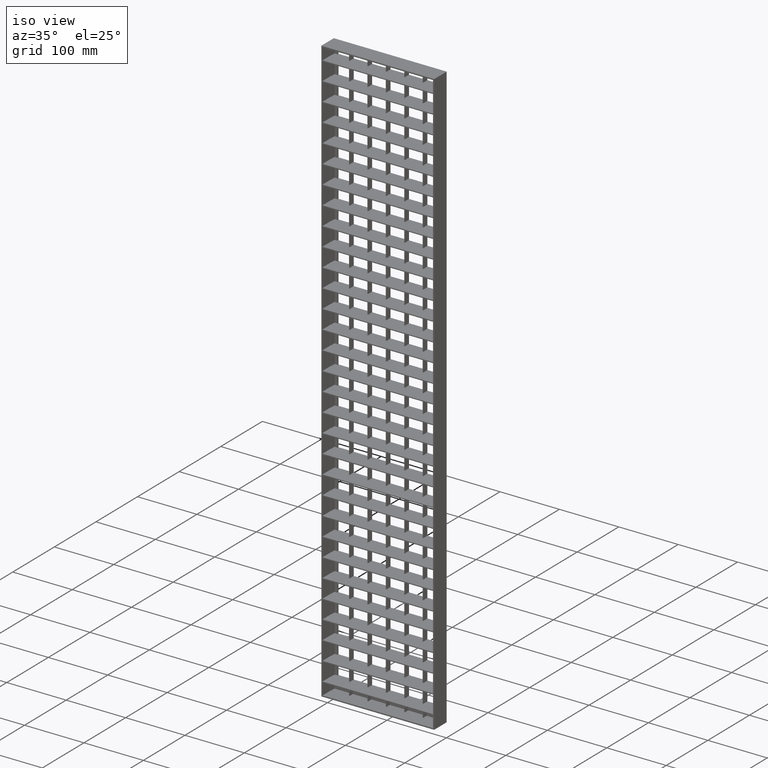
[diagram: clean part render]
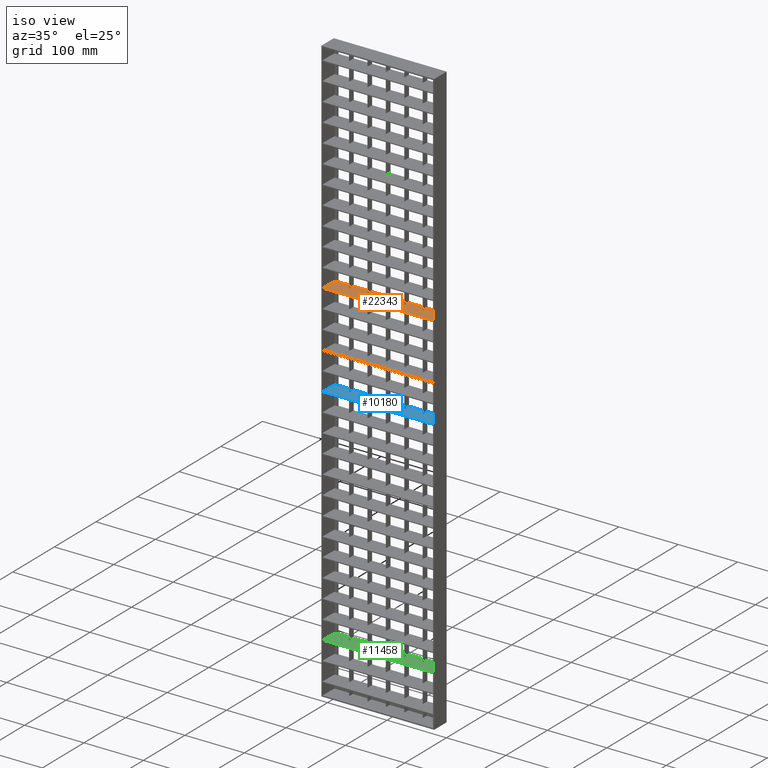
[diagram: same view with three faces highlighted in distinct colors, each labeled with its STEP entity id]
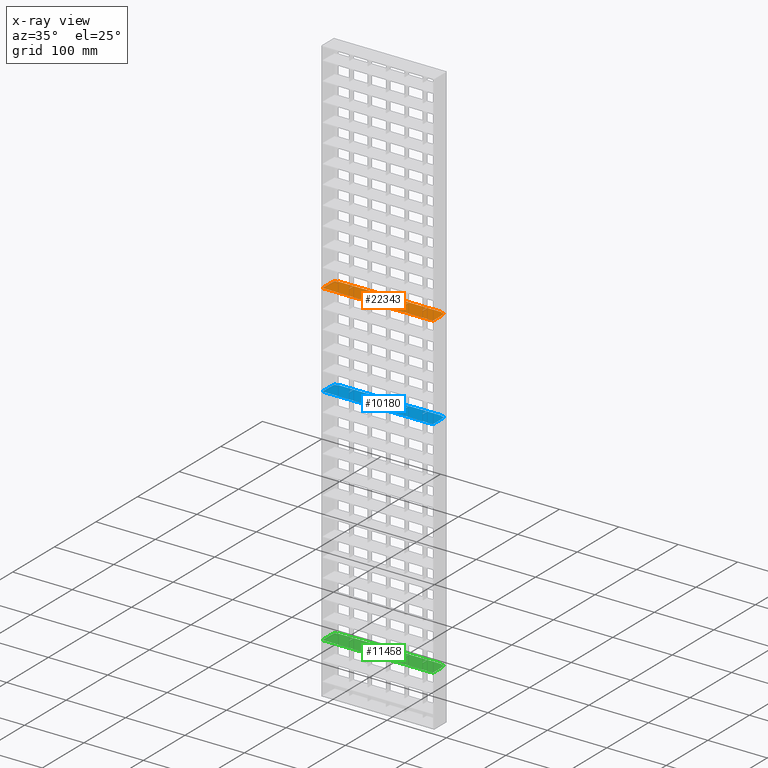
[diagram: x-ray of the same camera — body ghosted, the three highlighted faces saturated]
A machine part, iso view with three faces highlighted in distinct colors.
The next image is the same camera in x-ray (body ghosted, the three faces saturated) — at least one of them is partly hidden behind the body in this view.
Their STEP definitions:

[orange] entity #22343 — the highlighted planar face has unit normal (0, 0, 1).
#105 = CARTESIAN_POINT ( 'NONE',  ( 32.49999999999997200, 5.000000000000000900, -368.2500000000000000 ) ) ;
#331 = CARTESIAN_POINT ( 'NONE',  ( 188.0000000000000300, -15.00000000000000700, -368.2500000000000000 ) ) ;
#342 = DIRECTION ( 'NONE',  ( -1.000000000000000000, 0.0000000000000000000, 0.0000000000000000000 ) ) ;
#415 = VECTOR ( 'NONE', #27162, 1000.000000000000000 ) ;
#445 = VECTOR ( 'NONE', #29638, 1000.000000000000000 ) ;
#1044 = CARTESIAN_POINT ( 'NONE',  ( 218.0374765917511900, 15.00000000000005900, -368.2500000000000000 ) ) ;
#1178 = EDGE_CURVE ( 'NONE', #30626, #23594, #15263, .T. ) ;
#1269 = ORIENTED_EDGE ( 'NONE', *, *, #29873, .T. ) ;
#1390 = CARTESIAN_POINT ( 'NONE',  ( 125.5000000000000600, -14.99999999999994000, -368.2500000000000000 ) ) ;
#1396 = EDGE_CURVE ( 'NONE', #33970, #20019, #18161, .T. ) ;
#1460 = LINE ( 'NONE', #13588, #17010 ) ;
#1532 = VERTEX_POINT ( 'NONE', #21251 ) ;
#1590 = DIRECTION ( 'NONE',  ( 1.000000000000000000, 0.0000000000000000000, -0.0000000000000000000 ) ) ;
#1907 = CARTESIAN_POINT ( 'NONE',  ( 33.49999999999997200, 15.00000000000000200, -368.2500000000000000 ) ) ;
#2244 = VERTEX_POINT ( 'NONE', #4692 ) ;
#2394 = VERTEX_POINT ( 'NONE', #26010 ) ;
#2450 = EDGE_CURVE ( 'NONE', #20481, #14210, #15562, .T. ) ;
#2618 = LINE ( 'NONE', #1044, #3034 ) ;
#3034 = VECTOR ( 'NONE', #32163, 1000.000000000000000 ) ;
#3248 = CARTESIAN_POINT ( 'NONE',  ( 218.0374765917511900, -14.99999999999994000, -368.2500000000000000 ) ) ;
#3270 = VERTEX_POINT ( 'NONE', #17194 ) ;
#3284 = CARTESIAN_POINT ( 'NONE',  ( 2.000000000000001800, -15.00000000000000700, -368.2500000000000000 ) ) ;
#3386 = EDGE_CURVE ( 'NONE', #15707, #21426, #16374, .T. ) ;
#3471 = CARTESIAN_POINT ( 'NONE',  ( 7.999999999999994700, 15.00000000000000400, -368.2499999999999400 ) ) ;
#3502 = ORIENTED_EDGE ( 'NONE', *, *, #32850, .T. ) ;
#3815 = CARTESIAN_POINT ( 'NONE',  ( 126.5000000000000600, -14.99999999999994000, -368.2500000000000000 ) ) ;
#3824 = VECTOR ( 'NONE', #4764, 1000.000000000000000 ) ;
#3900 = CARTESIAN_POINT ( 'NONE',  ( 218.0374765917511900, -14.99999999999994000, -368.2500000000000000 ) ) ;
#3992 = LINE ( 'NONE', #4289, #5203 ) ;
#4093 = CARTESIAN_POINT ( 'NONE',  ( 218.0374765917511900, 5.000000000000000900, -368.2500000000000000 ) ) ;
#4235 = VERTEX_POINT ( 'NONE', #31101 ) ;
#4289 = CARTESIAN_POINT ( 'NONE',  ( 218.0374765917511900, 5.000000000000000900, -368.2500000000000000 ) ) ;
#4519 = CARTESIAN_POINT ( 'NONE',  ( 2.000000000000004900, 13.00000000000000400, -368.2499999999999400 ) ) ;
#4531 = LINE ( 'NONE', #19192, #10654 ) ;
#4649 = CARTESIAN_POINT ( 'NONE',  ( 63.49999999999997200, 5.000000000000000900, -368.2500000000000000 ) ) ;
#4692 = CARTESIAN_POINT ( 'NONE',  ( 157.5000000000000300, 15.00000000000000200, -368.2500000000001700 ) ) ;
#4698 = LINE ( 'NONE', #29965, #31704 ) ;
#4764 = DIRECTION ( 'NONE',  ( -0.0000000000000000000, -1.000000000000000000, 0.0000000000000000000 ) ) ;
#4789 = VECTOR ( 'NONE', #23201, 1000.000000000000000 ) ;
#5035 = CARTESIAN_POINT ( 'NONE',  ( 187.5000000000000600, 13.00000000000000400, -368.2499999999999400 ) ) ;
#5189 = CARTESIAN_POINT ( 'NONE',  ( 64.49999999999997200, -14.99999999999994000, -368.2500000000000000 ) ) ;
#5203 = VECTOR ( 'NONE', #1590, 1000.000000000000000 ) ;
#5529 = CARTESIAN_POINT ( 'NONE',  ( 218.0374765917511900, 5.000000000000000900, -368.2500000000000000 ) ) ;
#5630 = VECTOR ( 'NONE', #28672, 1000.000000000000000 ) ;
#5657 = CARTESIAN_POINT ( 'NONE',  ( 182.0000000000000300, 13.00000000000000400, -368.2499999999999400 ) ) ;
#5779 = ORIENTED_EDGE ( 'NONE', *, *, #7099, .T. ) ;
#5837 = CARTESIAN_POINT ( 'NONE',  ( 125.5000000000000600, 5.000000000000002700, -368.2500000000001700 ) ) ;
#6027 = VECTOR ( 'NONE', #7888, 1000.000000000000000 ) ;
#6158 = DIRECTION ( 'NONE',  ( -1.000000000000000000, -3.061616997868382600E-016, 0.0000000000000000000 ) ) ;
#6334 = DIRECTION ( 'NONE',  ( 8.673617379884036500E-016, -1.000000000000000000, 0.0000000000000000000 ) ) ;
#6576 = VECTOR ( 'NONE', #8154, 1000.000000000000000 ) ;
#6780 = CARTESIAN_POINT ( 'NONE',  ( 157.5000000000000300, 5.000000000000002700, -368.2500000000001700 ) ) ;
#6838 = DIRECTION ( 'NONE',  ( 1.000000000000000000, 0.0000000000000000000, -0.0000000000000000000 ) ) ;
#6901 = ORIENTED_EDGE ( 'NONE', *, *, #15376, .T. ) ;
#7099 = EDGE_CURVE ( 'NONE', #15375, #25930, #18049, .T. ) ;
#7152 = EDGE_CURVE ( 'NONE', #30668, #9257, #13497, .T. ) ;
#7202 = LINE ( 'NONE', #22736, #33446 ) ;
#7361 = DIRECTION ( 'NONE',  ( -1.000000000000000000, 0.0000000000000000000, 0.0000000000000000000 ) ) ;
#7480 = CARTESIAN_POINT ( 'NONE',  ( 2.000000000000004900, -15.00000000000000000, -368.2499999999999400 ) ) ;
#7504 = LINE ( 'NONE', #10257, #23535 ) ;
#7610 = LINE ( 'NONE', #4519, #28954 ) ;
#7839 = CARTESIAN_POINT ( 'NONE',  ( 94.49999999999997200, -14.99999999999994000, -368.2500000000000000 ) ) ;
#7888 = DIRECTION ( 'NONE',  ( -0.0000000000000000000, 1.000000000000000000, 0.0000000000000000000 ) ) ;
#8088 = CARTESIAN_POINT ( 'NONE',  ( 218.0374765917511900, 5.000000000000000900, -368.2500000000000000 ) ) ;
#8154 = DIRECTION ( 'NONE',  ( 1.000000000000000000, 0.0000000000000000000, -0.0000000000000000000 ) ) ;
#8186 = VECTOR ( 'NONE', #14996, 1000.000000000000000 ) ;
#8497 = DIRECTION ( 'NONE',  ( -1.000000000000000000, -3.061616997868382600E-016, 0.0000000000000000000 ) ) ;
#8777 = CARTESIAN_POINT ( 'NONE',  ( 187.5000000000000600, 5.000000000000002700, -368.2500000000001700 ) ) ;
#8855 = LINE ( 'NONE', #25490, #21994 ) ;
#9047 = EDGE_CURVE ( 'NONE', #20481, #10641, #10936, .T. ) ;
#9257 = VERTEX_POINT ( 'NONE', #16864 ) ;
#9307 = VECTOR ( 'NONE', #11713, 1000.000000000000000 ) ;
#9832 = EDGE_CURVE ( 'NONE', #14603, #12320, #14716, .T. ) ;
#10002 = EDGE_CURVE ( 'NONE', #2244, #15375, #32169, .T. ) ;
#10168 = ORIENTED_EDGE ( 'NONE', *, *, #9832, .T. ) ;
#10202 = CARTESIAN_POINT ( 'NONE',  ( 126.5000000000000600, 15.00000000000000200, -368.2500000000001700 ) ) ;
#10257 = CARTESIAN_POINT ( 'NONE',  ( 218.0374765917511900, 5.000000000000000900, -368.2500000000000000 ) ) ;
#10611 = CARTESIAN_POINT ( 'NONE',  ( 218.0374765917511900, 15.00000000000005900, -368.2500000000000000 ) ) ;
#10628 = EDGE_CURVE ( 'NONE', #16754, #18003, #7504, .T. ) ;
#10641 = VERTEX_POINT ( 'NONE', #105 ) ;
#10654 = VECTOR ( 'NONE', #26853, 1000.000000000000000 ) ;
#10706 = EDGE_CURVE ( 'NONE', #22931, #2244, #2618, .T. ) ;
#10825 = ORIENTED_EDGE ( 'NONE', *, *, #1396, .T. ) ;
#10846 = ORIENTED_EDGE ( 'NONE', *, *, #15872, .F. ) ;
#10936 = LINE ( 'NONE', #33827, #5630 ) ;
#11176 = CARTESIAN_POINT ( 'NONE',  ( 188.0000000000000300, 5.000000000000004400, -368.2500000000000600 ) ) ;
#11473 = ORIENTED_EDGE ( 'NONE', *, *, #7152, .T. ) ;
#11655 = EDGE_CURVE ( 'NONE', #32511, #30668, #20615, .T. ) ;
#11686 = CARTESIAN_POINT ( 'NONE',  ( 181.9999999999999700, 15.00000000000000400, -368.2499999999999400 ) ) ;
#11713 = DIRECTION ( 'NONE',  ( -0.0000000000000000000, 1.000000000000000000, 0.0000000000000000000 ) ) ;
#11723 = VECTOR ( 'NONE', #27308, 1000.000000000000000 ) ;
#11837 = LINE ( 'NONE', #16622, #415 ) ;
#11850 = LINE ( 'NONE', #19537, #27043 ) ;
#12256 = VERTEX_POINT ( 'NONE', #4649 ) ;
#12320 = VERTEX_POINT ( 'NONE', #5657 ) ;
#12433 = DIRECTION ( 'NONE',  ( -0.0000000000000000000, 1.000000000000000000, 0.0000000000000000000 ) ) ;
#12627 = VERTEX_POINT ( 'NONE', #27754 ) ;
#12664 = EDGE_CURVE ( 'NONE', #9257, #3270, #11850, .T. ) ;
#12921 = CARTESIAN_POINT ( 'NONE',  ( 2.499999999999974200, 13.00000000000000400, -368.2499999999999400 ) ) ;
#13124 = LINE ( 'NONE', #5529, #6576 ) ;
#13258 = DIRECTION ( 'NONE',  ( -1.000000000000000000, -3.061616997868382600E-016, 0.0000000000000000000 ) ) ;
#13393 = ORIENTED_EDGE ( 'NONE', *, *, #33007, .T. ) ;
#13497 = LINE ( 'NONE', #1390, #21713 ) ;
#13587 = ORIENTED_EDGE ( 'NONE', *, *, #9047, .F. ) ;
#13588 = CARTESIAN_POINT ( 'NONE',  ( 218.0374765917511900, 15.00000000000005900, -368.2500000000000000 ) ) ;
#13740 = EDGE_CURVE ( 'NONE', #18003, #14603, #25321, .T. ) ;
#13866 = EDGE_CURVE ( 'NONE', #16241, #29797, #3992, .T. ) ;
#14177 = CARTESIAN_POINT ( 'NONE',  ( 64.49999999999997200, 15.00000000000001200, -368.2500000000000000 ) ) ;
#14210 = VERTEX_POINT ( 'NONE', #3471 ) ;
#14242 = DIRECTION ( 'NONE',  ( -0.0000000000000000000, 1.000000000000000000, 0.0000000000000000000 ) ) ;
#14365 = CARTESIAN_POINT ( 'NONE',  ( 218.0374765917511900, 15.00000000000005900, -368.2500000000000000 ) ) ;
#14603 = VERTEX_POINT ( 'NONE', #5035 ) ;
#14638 = VERTEX_POINT ( 'NONE', #12921 ) ;
#14716 = LINE ( 'NONE', #30712, #8186 ) ;
#14745 = ORIENTED_EDGE ( 'NONE', *, *, #2450, .T. ) ;
#14869 = ORIENTED_EDGE ( 'NONE', *, *, #10002, .T. ) ;
#14928 = VECTOR ( 'NONE', #15637, 1000.000000000000000 ) ;
#14996 = DIRECTION ( 'NONE',  ( -1.000000000000000000, 0.0000000000000000000, 0.0000000000000000000 ) ) ;
#15198 = EDGE_LOOP ( 'NONE', ( #32326, #27073, #16518, #10168, #1269, #30987, #14869, #5779, #29835, #32878, #6901, #23401, #11473, #24644, #16704, #20458, #24486, #17330, #23876, #25021, #17707, #30587, #28047, #25943, #13587, #14745, #13393, #3502, #10846, #21398, #10825, #31093 ) ) ;
#15263 = LINE ( 'NONE', #22205, #32080 ) ;
#15375 = VERTEX_POINT ( 'NONE', #6780 ) ;
#15376 = EDGE_CURVE ( 'NONE', #21518, #32511, #21191, .T. ) ;
#15562 = LINE ( 'NONE', #14365, #445 ) ;
#15637 = DIRECTION ( 'NONE',  ( 0.0000000000000000000, -1.000000000000000000, 0.0000000000000000000 ) ) ;
#15707 = VERTEX_POINT ( 'NONE', #17135 ) ;
#15799 = EDGE_CURVE ( 'NONE', #12256, #21765, #8855, .T. ) ;
#15872 = EDGE_CURVE ( 'NONE', #2394, #14638, #7202, .T. ) ;
#15992 = VECTOR ( 'NONE', #29875, 1000.000000000000000 ) ;
#16039 = CARTESIAN_POINT ( 'NONE',  ( 157.5000000000000300, -14.99999999999994000, -368.2500000000000000 ) ) ;
#16181 = CARTESIAN_POINT ( 'NONE',  ( 156.5000000000000300, 5.000000000000002700, -368.2500000000001700 ) ) ;
#16241 = VERTEX_POINT ( 'NONE', #32546 ) ;
#16374 = LINE ( 'NONE', #25440, #22965 ) ;
#16380 = CARTESIAN_POINT ( 'NONE',  ( 2.000000000000004900, 5.000000000000000900, -368.2499999999999400 ) ) ;
#16518 = ORIENTED_EDGE ( 'NONE', *, *, #13740, .T. ) ;
#16622 = CARTESIAN_POINT ( 'NONE',  ( 188.0000000000000300, -14.99999999999994000, -368.2500000000000000 ) ) ;
#16704 = ORIENTED_EDGE ( 'NONE', *, *, #32437, .F. ) ;
#16754 = VERTEX_POINT ( 'NONE', #11176 ) ;
#16791 = VECTOR ( 'NONE', #20023, 1000.000000000000000 ) ;
#16864 = CARTESIAN_POINT ( 'NONE',  ( 125.5000000000000600, 15.00000000000003000, -368.2500000000000000 ) ) ;
#16914 = CARTESIAN_POINT ( 'NONE',  ( 187.5000000000000600, -14.99999999999994000, -368.2500000000000000 ) ) ;
#17010 = VECTOR ( 'NONE', #29087, 1000.000000000000000 ) ;
#17135 = CARTESIAN_POINT ( 'NONE',  ( 33.49999999999997200, 5.000000000000004400, -368.2500000000000000 ) ) ;
#17194 = CARTESIAN_POINT ( 'NONE',  ( 95.49999999999997200, 15.00000000000002000, -368.2500000000000000 ) ) ;
#17330 = ORIENTED_EDGE ( 'NONE', *, *, #1178, .T. ) ;
#17707 = ORIENTED_EDGE ( 'NONE', *, *, #24199, .F. ) ;
#18003 = VERTEX_POINT ( 'NONE', #8777 ) ;
#18049 = LINE ( 'NONE', #30225, #15992 ) ;
#18161 = LINE ( 'NONE', #7480, #3824 ) ;
#18803 = CARTESIAN_POINT ( 'NONE',  ( 126.5000000000000600, 5.000000000000002700, -368.2500000000001700 ) ) ;
#18919 = CARTESIAN_POINT ( 'NONE',  ( 32.49999999999997200, 15.00000000000000200, -368.2500000000001700 ) ) ;
#19192 = CARTESIAN_POINT ( 'NONE',  ( 182.0000000000000300, 12.99999999999991300, -368.2499999999999400 ) ) ;
#19537 = CARTESIAN_POINT ( 'NONE',  ( 218.0374765917511900, 15.00000000000005900, -368.2500000000000000 ) ) ;
#19992 = LINE ( 'NONE', #23437, #31854 ) ;
#20019 = VERTEX_POINT ( 'NONE', #3284 ) ;
#20023 = DIRECTION ( 'NONE',  ( 0.0000000000000000000, -1.000000000000000000, 0.0000000000000000000 ) ) ;
#20458 = ORIENTED_EDGE ( 'NONE', *, *, #13866, .F. ) ;
#20481 = VERTEX_POINT ( 'NONE', #18919 ) ;
#20615 = LINE ( 'NONE', #8088, #22606 ) ;
#21191 = LINE ( 'NONE', #3815, #11723 ) ;
#21251 = CARTESIAN_POINT ( 'NONE',  ( 7.999999999999996400, 13.00000000000000400, -368.2499999999999400 ) ) ;
#21398 = ORIENTED_EDGE ( 'NONE', *, *, #31795, .F. ) ;
#21424 = DIRECTION ( 'NONE',  ( 0.0000000000000000000, -1.000000000000000000, 0.0000000000000000000 ) ) ;
#21426 = VERTEX_POINT ( 'NONE', #1907 ) ;
#21518 = VERTEX_POINT ( 'NONE', #10202 ) ;
#21563 = VECTOR ( 'NONE', #6838, 1000.000000000000000 ) ;
#21713 = VECTOR ( 'NONE', #24968, 1000.000000000000000 ) ;
#21765 = VERTEX_POINT ( 'NONE', #30173 ) ;
#21894 = DIRECTION ( 'NONE',  ( 1.000000000000000000, 0.0000000000000000000, -0.0000000000000000000 ) ) ;
#21994 = VECTOR ( 'NONE', #22851, 1000.000000000000000 ) ;
#22043 = DIRECTION ( 'NONE',  ( -1.000000000000000000, -3.061616997868382600E-016, 0.0000000000000000000 ) ) ;
#22205 = CARTESIAN_POINT ( 'NONE',  ( 218.0374765917511900, 15.00000000000005900, -368.2500000000000000 ) ) ;
#22343 = ADVANCED_FACE ( 'NONE', ( #33710 ), #32880, .T. ) ;
#22426 = LINE ( 'NONE', #5189, #4789 ) ;
#22606 = VECTOR ( 'NONE', #342, 1000.000000000000000 ) ;
#22736 = CARTESIAN_POINT ( 'NONE',  ( 2.499999999999974200, -14.99999999999994000, -368.2500000000000000 ) ) ;
#22851 = DIRECTION ( 'NONE',  ( 1.000000000000000000, 0.0000000000000000000, -0.0000000000000000000 ) ) ;
#22931 = VERTEX_POINT ( 'NONE', #11686 ) ;
#22965 = VECTOR ( 'NONE', #12433, 1000.000000000000000 ) ;
#23201 = DIRECTION ( 'NONE',  ( -0.0000000000000000000, 1.000000000000000000, 0.0000000000000000000 ) ) ;
#23401 = ORIENTED_EDGE ( 'NONE', *, *, #11655, .T. ) ;
#23437 = CARTESIAN_POINT ( 'NONE',  ( 7.999999999999996400, 13.00000000000000400, -368.2499999999999400 ) ) ;
#23535 = VECTOR ( 'NONE', #24290, 1000.000000000000000 ) ;
#23594 = VERTEX_POINT ( 'NONE', #14177 ) ;
#23876 = ORIENTED_EDGE ( 'NONE', *, *, #25794, .F. ) ;
#24199 = EDGE_CURVE ( 'NONE', #12627, #12256, #29107, .T. ) ;
#24290 = DIRECTION ( 'NONE',  ( -1.000000000000000000, 0.0000000000000000000, 0.0000000000000000000 ) ) ;
#24486 = ORIENTED_EDGE ( 'NONE', *, *, #27109, .F. ) ;
#24491 = VECTOR ( 'NONE', #13258, 1000.000000000000000 ) ;
#24644 = ORIENTED_EDGE ( 'NONE', *, *, #12664, .T. ) ;
#24952 = CARTESIAN_POINT ( 'NONE',  ( 63.49999999999997200, -14.99999999999994000, -368.2500000000000000 ) ) ;
#24968 = DIRECTION ( 'NONE',  ( -0.0000000000000000000, 1.000000000000000000, 0.0000000000000000000 ) ) ;
#25021 = ORIENTED_EDGE ( 'NONE', *, *, #15799, .F. ) ;
#25321 = LINE ( 'NONE', #16914, #9307 ) ;
#25364 = LINE ( 'NONE', #3248, #27806 ) ;
#25440 = CARTESIAN_POINT ( 'NONE',  ( 33.49999999999997200, -14.99999999999994000, -368.2500000000000000 ) ) ;
#25490 = CARTESIAN_POINT ( 'NONE',  ( 218.0374765917511900, 5.000000000000000900, -368.2500000000000000 ) ) ;
#25794 = EDGE_CURVE ( 'NONE', #21765, #23594, #22426, .T. ) ;
#25930 = VERTEX_POINT ( 'NONE', #16181 ) ;
#25943 = ORIENTED_EDGE ( 'NONE', *, *, #26902, .F. ) ;
#26010 = CARTESIAN_POINT ( 'NONE',  ( 2.499999999999974200, 5.000000000000004400, -368.2500000000000000 ) ) ;
#26396 = CARTESIAN_POINT ( 'NONE',  ( 95.49999999999997200, 5.000000000000004400, -368.2500000000000000 ) ) ;
#26507 = EDGE_CURVE ( 'NONE', #4235, #21518, #31809, .T. ) ;
#26853 = DIRECTION ( 'NONE',  ( 8.673617379884037400E-016, 1.000000000000000000, -0.0000000000000000000 ) ) ;
#26902 = EDGE_CURVE ( 'NONE', #10641, #15707, #26904, .T. ) ;
#26904 = LINE ( 'NONE', #4093, #21563 ) ;
#27043 = VECTOR ( 'NONE', #22043, 1000.000000000000000 ) ;
#27045 = CARTESIAN_POINT ( 'NONE',  ( 94.49999999999997200, 15.00000000000000200, -368.2500000000001700 ) ) ;
#27073 = ORIENTED_EDGE ( 'NONE', *, *, #10628, .T. ) ;
#27109 = EDGE_CURVE ( 'NONE', #30626, #16241, #31361, .T. ) ;
#27162 = DIRECTION ( 'NONE',  ( 0.0000000000000000000, -1.000000000000000000, 0.0000000000000000000 ) ) ;
#27308 = DIRECTION ( 'NONE',  ( 0.0000000000000000000, -1.000000000000000000, 0.0000000000000000000 ) ) ;
#27534 = EDGE_CURVE ( 'NONE', #12627, #21426, #1460, .T. ) ;
#27754 = CARTESIAN_POINT ( 'NONE',  ( 63.49999999999997200, 15.00000000000000200, -368.2500000000001700 ) ) ;
#27806 = VECTOR ( 'NONE', #8497, 1000.000000000000000 ) ;
#28047 = ORIENTED_EDGE ( 'NONE', *, *, #3386, .F. ) ;
#28420 = EDGE_CURVE ( 'NONE', #25930, #4235, #4698, .T. ) ;
#28672 = DIRECTION ( 'NONE',  ( 0.0000000000000000000, -1.000000000000000000, 0.0000000000000000000 ) ) ;
#28954 = VECTOR ( 'NONE', #7361, 1000.000000000000000 ) ;
#29087 = DIRECTION ( 'NONE',  ( -1.000000000000000000, -3.061616997868382600E-016, 0.0000000000000000000 ) ) ;
#29107 = LINE ( 'NONE', #24952, #16791 ) ;
#29403 = LINE ( 'NONE', #33907, #6027 ) ;
#29598 = AXIS2_PLACEMENT_3D ( 'NONE', #3900, #30139, #21894 ) ;
#29638 = DIRECTION ( 'NONE',  ( -1.000000000000000000, -3.061616997868382600E-016, 0.0000000000000000000 ) ) ;
#29797 = VERTEX_POINT ( 'NONE', #26396 ) ;
#29835 = ORIENTED_EDGE ( 'NONE', *, *, #28420, .T. ) ;
#29873 = EDGE_CURVE ( 'NONE', #12320, #22931, #4531, .T. ) ;
#29875 = DIRECTION ( 'NONE',  ( -1.000000000000000000, 0.0000000000000000000, 0.0000000000000000000 ) ) ;
#29965 = CARTESIAN_POINT ( 'NONE',  ( 156.5000000000000300, -14.99999999999994000, -368.2500000000000000 ) ) ;
#30139 = DIRECTION ( 'NONE',  ( 0.0000000000000000000, 0.0000000000000000000, 1.000000000000000000 ) ) ;
#30173 = CARTESIAN_POINT ( 'NONE',  ( 64.49999999999997200, 5.000000000000004400, -368.2500000000000000 ) ) ;
#30225 = CARTESIAN_POINT ( 'NONE',  ( 218.0374765917511900, 5.000000000000000900, -368.2500000000000000 ) ) ;
#30587 = ORIENTED_EDGE ( 'NONE', *, *, #27534, .T. ) ;
#30626 = VERTEX_POINT ( 'NONE', #27045 ) ;
#30668 = VERTEX_POINT ( 'NONE', #5837 ) ;
#30688 = EDGE_CURVE ( 'NONE', #16754, #31196, #11837, .T. ) ;
#30712 = CARTESIAN_POINT ( 'NONE',  ( 94.99999999999994300, 13.00000000000000400, -368.2500000000000600 ) ) ;
#30987 = ORIENTED_EDGE ( 'NONE', *, *, #10706, .T. ) ;
#31093 = ORIENTED_EDGE ( 'NONE', *, *, #31892, .F. ) ;
#31101 = CARTESIAN_POINT ( 'NONE',  ( 156.5000000000000300, 15.00000000000003900, -368.2500000000000000 ) ) ;
#31196 = VERTEX_POINT ( 'NONE', #331 ) ;
#31345 = VECTOR ( 'NONE', #21424, 1000.000000000000000 ) ;
#31361 = LINE ( 'NONE', #7839, #14928 ) ;
#31704 = VECTOR ( 'NONE', #14242, 1000.000000000000000 ) ;
#31795 = EDGE_CURVE ( 'NONE', #33970, #2394, #13124, .T. ) ;
#31809 = LINE ( 'NONE', #10611, #24491 ) ;
#31854 = VECTOR ( 'NONE', #6334, 1000.000000000000000 ) ;
#31892 = EDGE_CURVE ( 'NONE', #31196, #20019, #25364, .T. ) ;
#32080 = VECTOR ( 'NONE', #6158, 1000.000000000000000 ) ;
#32163 = DIRECTION ( 'NONE',  ( -1.000000000000000000, -3.061616997868382600E-016, 0.0000000000000000000 ) ) ;
#32169 = LINE ( 'NONE', #16039, #31345 ) ;
#32326 = ORIENTED_EDGE ( 'NONE', *, *, #30688, .F. ) ;
#32437 = EDGE_CURVE ( 'NONE', #29797, #3270, #29403, .T. ) ;
#32511 = VERTEX_POINT ( 'NONE', #18803 ) ;
#32546 = CARTESIAN_POINT ( 'NONE',  ( 94.49999999999997200, 5.000000000000000900, -368.2500000000000000 ) ) ;
#32850 = EDGE_CURVE ( 'NONE', #1532, #14638, #7610, .T. ) ;
#32878 = ORIENTED_EDGE ( 'NONE', *, *, #26507, .T. ) ;
#32880 = PLANE ( 'NONE',  #29598 ) ;
#33007 = EDGE_CURVE ( 'NONE', #14210, #1532, #19992, .T. ) ;
#33446 = VECTOR ( 'NONE', #33596, 1000.000000000000000 ) ;
#33596 = DIRECTION ( 'NONE',  ( -0.0000000000000000000, 1.000000000000000000, 0.0000000000000000000 ) ) ;
#33710 = FACE_OUTER_BOUND ( 'NONE', #15198, .T. ) ;
#33827 = CARTESIAN_POINT ( 'NONE',  ( 32.49999999999997200, -14.99999999999994000, -368.2500000000000000 ) ) ;
#33907 = CARTESIAN_POINT ( 'NONE',  ( 95.49999999999997200, -14.99999999999994000, -368.2500000000000000 ) ) ;
#33970 = VERTEX_POINT ( 'NONE', #16380 ) ;

[blue] entity #10180 — the highlighted planar face has unit normal (0, 0, -1).
#83 = DIRECTION ( 'NONE',  ( -1.000000000000000000, -3.061616997868382600E-016, 0.0000000000000000000 ) ) ;
#155 = CARTESIAN_POINT ( 'NONE',  ( 63.49999999999997200, 5.000000000000000900, -525.7500000000000000 ) ) ;
#400 = EDGE_CURVE ( 'NONE', #10801, #22741, #14116, .T. ) ;
#472 = EDGE_CURVE ( 'NONE', #5663, #16932, #22769, .T. ) ;
#515 = CARTESIAN_POINT ( 'NONE',  ( 181.9999999999999700, 15.00000000000000400, -525.7500000000000000 ) ) ;
#719 = VERTEX_POINT ( 'NONE', #6086 ) ;
#722 = CARTESIAN_POINT ( 'NONE',  ( 126.5000000000000600, 15.00000000000003000, -525.7500000000000000 ) ) ;
#753 = DIRECTION ( 'NONE',  ( 0.0000000000000000000, 1.000000000000000000, 0.0000000000000000000 ) ) ;
#840 = EDGE_CURVE ( 'NONE', #8675, #12048, #8330, .T. ) ;
#844 = DIRECTION ( 'NONE',  ( -1.000000000000000000, -3.061616997868382600E-016, 0.0000000000000000000 ) ) ;
#867 = VERTEX_POINT ( 'NONE', #19736 ) ;
#1115 = VECTOR ( 'NONE', #22411, 1000.000000000000000 ) ;
#1223 = VERTEX_POINT ( 'NONE', #19920 ) ;
#1240 = CARTESIAN_POINT ( 'NONE',  ( 94.49999999999997200, 5.000000000000000900, -525.7500000000000000 ) ) ;
#1256 = CARTESIAN_POINT ( 'NONE',  ( 94.49999999999997200, -14.99999999999994000, -525.7500000000000000 ) ) ;
#1367 = EDGE_CURVE ( 'NONE', #9650, #25213, #30449, .T. ) ;
#1549 = LINE ( 'NONE', #6245, #20748 ) ;
#1586 = ORIENTED_EDGE ( 'NONE', *, *, #2517, .T. ) ;
#1819 = ORIENTED_EDGE ( 'NONE', *, *, #23588, .F. ) ;
#2070 = VECTOR ( 'NONE', #844, 1000.000000000000000 ) ;
#2219 = ORIENTED_EDGE ( 'NONE', *, *, #840, .F. ) ;
#2458 = CARTESIAN_POINT ( 'NONE',  ( 95.49999999999997200, -14.99999999999994000, -525.7500000000000000 ) ) ;
#2459 = VECTOR ( 'NONE', #20517, 1000.000000000000000 ) ;
#2517 = EDGE_CURVE ( 'NONE', #8783, #1223, #20912, .T. ) ;
#2530 = LINE ( 'NONE', #8431, #29996 ) ;
#2668 = EDGE_CURVE ( 'NONE', #14274, #10801, #6953, .T. ) ;
#2952 = LINE ( 'NONE', #31723, #23462 ) ;
#3093 = VERTEX_POINT ( 'NONE', #155 ) ;
#3094 = DIRECTION ( 'NONE',  ( 0.0000000000000000000, -1.000000000000000000, 0.0000000000000000000 ) ) ;
#3413 = EDGE_CURVE ( 'NONE', #15909, #19029, #18862, .T. ) ;
#3797 = CARTESIAN_POINT ( 'NONE',  ( 32.49999999999997200, 15.00000000000000200, -525.7500000000001100 ) ) ;
#3905 = FACE_OUTER_BOUND ( 'NONE', #21519, .T. ) ;
#3976 = CARTESIAN_POINT ( 'NONE',  ( 156.5000000000000300, -14.99999999999994000, -525.7500000000000000 ) ) ;
#4288 = CARTESIAN_POINT ( 'NONE',  ( 157.5000000000000300, -14.99999999999994000, -525.7500000000000000 ) ) ;
#4340 = EDGE_CURVE ( 'NONE', #27178, #13695, #7982, .T. ) ;
#4564 = EDGE_CURVE ( 'NONE', #16443, #19246, #12469, .T. ) ;
#4674 = CARTESIAN_POINT ( 'NONE',  ( 2.000000000000004900, -15.00000000000000000, -525.7500000000000000 ) ) ;
#4745 = ORIENTED_EDGE ( 'NONE', *, *, #5232, .F. ) ;
#4797 = EDGE_CURVE ( 'NONE', #19246, #15909, #14517, .T. ) ;
#4936 = CARTESIAN_POINT ( 'NONE',  ( 218.0374765917511900, 15.00000000000005900, -525.7500000000000000 ) ) ;
#4946 = VECTOR ( 'NONE', #22681, 1000.000000000000000 ) ;
#5005 = CARTESIAN_POINT ( 'NONE',  ( 218.0374765917511900, 5.000000000000000900, -525.7500000000000000 ) ) ;
#5060 = DIRECTION ( 'NONE',  ( 0.0000000000000000000, -1.000000000000000000, 0.0000000000000000000 ) ) ;
#5154 = ORIENTED_EDGE ( 'NONE', *, *, #400, .F. ) ;
#5232 = EDGE_CURVE ( 'NONE', #23964, #6624, #17780, .T. ) ;
#5660 = ORIENTED_EDGE ( 'NONE', *, *, #24062, .F. ) ;
#5663 = VERTEX_POINT ( 'NONE', #14447 ) ;
#5791 = VECTOR ( 'NONE', #14293, 1000.000000000000000 ) ;
#5860 = ORIENTED_EDGE ( 'NONE', *, *, #33172, .T. ) ;
#5914 = CARTESIAN_POINT ( 'NONE',  ( 156.5000000000000300, 15.00000000000003900, -525.7500000000000000 ) ) ;
#6014 = CARTESIAN_POINT ( 'NONE',  ( 188.0000000000000300, -15.00000000000000700, -525.7500000000000000 ) ) ;
#6086 = CARTESIAN_POINT ( 'NONE',  ( 2.499999999999974200, 5.000000000000004400, -525.7500000000000000 ) ) ;
#6134 = CARTESIAN_POINT ( 'NONE',  ( 125.5000000000000600, 15.00000000000003000, -525.7500000000000000 ) ) ;
#6245 = CARTESIAN_POINT ( 'NONE',  ( 218.0374765917511900, 15.00000000000005900, -525.7500000000000000 ) ) ;
#6624 = VERTEX_POINT ( 'NONE', #10958 ) ;
#6673 = DIRECTION ( 'NONE',  ( 0.0000000000000000000, 1.000000000000000000, 0.0000000000000000000 ) ) ;
#6746 = CARTESIAN_POINT ( 'NONE',  ( 187.5000000000000600, -14.99999999999994000, -525.7500000000000000 ) ) ;
#6953 = LINE ( 'NONE', #17602, #29117 ) ;
#7104 = ORIENTED_EDGE ( 'NONE', *, *, #31853, .F. ) ;
#7183 = ORIENTED_EDGE ( 'NONE', *, *, #13001, .T. ) ;
#7196 = CARTESIAN_POINT ( 'NONE',  ( 33.49999999999997200, -14.99999999999994000, -525.7500000000000000 ) ) ;
#7200 = CARTESIAN_POINT ( 'NONE',  ( 2.499999999999974200, 13.00000000000000500, -525.7500000000000000 ) ) ;
#7450 = DIRECTION ( 'NONE',  ( -1.000000000000000000, -3.061616997868382600E-016, 0.0000000000000000000 ) ) ;
#7510 = ORIENTED_EDGE ( 'NONE', *, *, #23802, .F. ) ;
#7538 = EDGE_CURVE ( 'NONE', #23964, #10247, #31964, .T. ) ;
#7738 = LINE ( 'NONE', #24315, #2070 ) ;
#7758 = CARTESIAN_POINT ( 'NONE',  ( 157.5000000000000300, 15.00000000000003900, -525.7500000000000000 ) ) ;
#7759 = DIRECTION ( 'NONE',  ( -1.000000000000000000, 0.0000000000000000000, 0.0000000000000000000 ) ) ;
#7982 = LINE ( 'NONE', #13655, #26890 ) ;
#8172 = DIRECTION ( 'NONE',  ( 0.0000000000000000000, 1.000000000000000000, 0.0000000000000000000 ) ) ;
#8330 = LINE ( 'NONE', #11775, #31292 ) ;
#8431 = CARTESIAN_POINT ( 'NONE',  ( 2.499999999999974200, -14.99999999999994000, -525.7500000000000000 ) ) ;
#8459 = CARTESIAN_POINT ( 'NONE',  ( 218.0374765917511900, 5.000000000000000900, -525.7500000000000000 ) ) ;
#8675 = VERTEX_POINT ( 'NONE', #6134 ) ;
#8783 = VERTEX_POINT ( 'NONE', #1240 ) ;
#9223 = DIRECTION ( 'NONE',  ( -8.673617379884037400E-016, -1.000000000000000000, 0.0000000000000000000 ) ) ;
#9232 = DIRECTION ( 'NONE',  ( 0.0000000000000000000, -1.000000000000000000, 0.0000000000000000000 ) ) ;
#9456 = CARTESIAN_POINT ( 'NONE',  ( 182.0000000000000300, 13.00000000000000400, -525.7500000000000000 ) ) ;
#9483 = VERTEX_POINT ( 'NONE', #17209 ) ;
#9650 = VERTEX_POINT ( 'NONE', #7200 ) ;
#9694 = CARTESIAN_POINT ( 'NONE',  ( 126.5000000000000600, -14.99999999999994000, -525.7500000000000000 ) ) ;
#9843 = CARTESIAN_POINT ( 'NONE',  ( 218.0374765917511900, 15.00000000000005900, -525.7500000000000000 ) ) ;
#10072 = CARTESIAN_POINT ( 'NONE',  ( 64.49999999999997200, 15.00000000000001200, -525.7500000000000000 ) ) ;
#10107 = VECTOR ( 'NONE', #6673, 1000.000000000000000 ) ;
#10158 = LINE ( 'NONE', #4288, #16740 ) ;
#10180 = ADVANCED_FACE ( 'NONE', ( #3905 ), #24771, .F. ) ;
#10247 = VERTEX_POINT ( 'NONE', #722 ) ;
#10410 = VECTOR ( 'NONE', #30684, 1000.000000000000000 ) ;
#10484 = CARTESIAN_POINT ( 'NONE',  ( 218.0374765917511900, 5.000000000000000900, -525.7500000000000000 ) ) ;
#10522 = CARTESIAN_POINT ( 'NONE',  ( 187.5000000000000600, 5.000000000000002700, -525.7500000000001100 ) ) ;
#10801 = VERTEX_POINT ( 'NONE', #9456 ) ;
#10958 = CARTESIAN_POINT ( 'NONE',  ( 156.5000000000000300, 5.000000000000002700, -525.7500000000001100 ) ) ;
#10994 = CARTESIAN_POINT ( 'NONE',  ( 8.000000000000007100, 14.99999999999999500, -525.7500000000000000 ) ) ;
#11003 = VECTOR ( 'NONE', #7450, 1000.000000000000000 ) ;
#11099 = LINE ( 'NONE', #9694, #4946 ) ;
#11291 = DIRECTION ( 'NONE',  ( 0.0000000000000000000, 1.000000000000000000, 0.0000000000000000000 ) ) ;
#11432 = CARTESIAN_POINT ( 'NONE',  ( 218.0374765917511900, -14.99999999999994000, -525.7500000000000000 ) ) ;
#11674 = ORIENTED_EDGE ( 'NONE', *, *, #29307, .T. ) ;
#11775 = CARTESIAN_POINT ( 'NONE',  ( 125.5000000000000600, -14.99999999999994000, -525.7500000000000000 ) ) ;
#11787 = EDGE_CURVE ( 'NONE', #9650, #719, #2530, .T. ) ;
#12021 = CARTESIAN_POINT ( 'NONE',  ( 63.49999999999997200, -14.99999999999994000, -525.7500000000000000 ) ) ;
#12048 = VERTEX_POINT ( 'NONE', #12059 ) ;
#12059 = CARTESIAN_POINT ( 'NONE',  ( 125.5000000000000600, 5.000000000000002700, -525.7500000000001100 ) ) ;
#12318 = CARTESIAN_POINT ( 'NONE',  ( 32.49999999999997200, -14.99999999999994000, -525.7500000000000000 ) ) ;
#12352 = ORIENTED_EDGE ( 'NONE', *, *, #4340, .T. ) ;
#12462 = VECTOR ( 'NONE', #15505, 1000.000000000000000 ) ;
#12469 = LINE ( 'NONE', #7196, #10410 ) ;
#12596 = ORIENTED_EDGE ( 'NONE', *, *, #24690, .T. ) ;
#12643 = LINE ( 'NONE', #8459, #20863 ) ;
#12708 = VECTOR ( 'NONE', #16005, 1000.000000000000000 ) ;
#12775 = DIRECTION ( 'NONE',  ( 1.000000000000000000, 0.0000000000000000000, 0.0000000000000000000 ) ) ;
#12972 = LINE ( 'NONE', #12021, #10107 ) ;
#13001 = EDGE_CURVE ( 'NONE', #719, #26029, #12643, .T. ) ;
#13655 = CARTESIAN_POINT ( 'NONE',  ( 188.0000000000000300, -14.99999999999994000, -525.7500000000000000 ) ) ;
#13695 = VERTEX_POINT ( 'NONE', #14128 ) ;
#14116 = LINE ( 'NONE', #31207, #12462 ) ;
#14125 = DIRECTION ( 'NONE',  ( -1.000000000000000000, -3.061616997868382600E-016, 0.0000000000000000000 ) ) ;
#14128 = CARTESIAN_POINT ( 'NONE',  ( 188.0000000000000300, 5.000000000000004400, -525.7500000000001100 ) ) ;
#14274 = VERTEX_POINT ( 'NONE', #515 ) ;
#14293 = DIRECTION ( 'NONE',  ( 0.0000000000000000000, -1.000000000000000000, 0.0000000000000000000 ) ) ;
#14447 = CARTESIAN_POINT ( 'NONE',  ( 95.49999999999997200, 15.00000000000002000, -525.7500000000000000 ) ) ;
#14517 = LINE ( 'NONE', #23498, #19084 ) ;
#14525 = DIRECTION ( 'NONE',  ( 0.0000000000000000000, -1.000000000000000000, 0.0000000000000000000 ) ) ;
#14698 = ORIENTED_EDGE ( 'NONE', *, *, #23338, .F. ) ;
#14787 = VECTOR ( 'NONE', #3094, 1000.000000000000000 ) ;
#14858 = EDGE_CURVE ( 'NONE', #8675, #5663, #1549, .T. ) ;
#14910 = EDGE_CURVE ( 'NONE', #16932, #8783, #22819, .T. ) ;
#15040 = ORIENTED_EDGE ( 'NONE', *, *, #30651, .T. ) ;
#15505 = DIRECTION ( 'NONE',  ( 1.000000000000000000, 0.0000000000000000000, 0.0000000000000000000 ) ) ;
#15591 = CARTESIAN_POINT ( 'NONE',  ( 218.0374765917511900, 15.00000000000005900, -525.7500000000000000 ) ) ;
#15647 = DIRECTION ( 'NONE',  ( -1.000000000000000000, 0.0000000000000000000, 0.0000000000000000000 ) ) ;
#15909 = VERTEX_POINT ( 'NONE', #17922 ) ;
#15917 = CARTESIAN_POINT ( 'NONE',  ( 64.49999999999997200, -14.99999999999994000, -525.7500000000000000 ) ) ;
#16005 = DIRECTION ( 'NONE',  ( 1.000000000000000000, 0.0000000000000000000, 0.0000000000000000000 ) ) ;
#16018 = LINE ( 'NONE', #10484, #17254 ) ;
#16147 = DIRECTION ( 'NONE',  ( -1.000000000000000000, 0.0000000000000000000, 0.0000000000000000000 ) ) ;
#16443 = VERTEX_POINT ( 'NONE', #31018 ) ;
#16556 = VECTOR ( 'NONE', #9232, 1000.000000000000000 ) ;
#16566 = VERTEX_POINT ( 'NONE', #7758 ) ;
#16734 = DIRECTION ( 'NONE',  ( -1.000000000000000000, 0.0000000000000000000, -0.0000000000000000000 ) ) ;
#16740 = VECTOR ( 'NONE', #22636, 1000.000000000000000 ) ;
#16932 = VERTEX_POINT ( 'NONE', #22315 ) ;
#17043 = CARTESIAN_POINT ( 'NONE',  ( 126.5000000000000600, 5.000000000000000900, -525.7500000000000000 ) ) ;
#17209 = CARTESIAN_POINT ( 'NONE',  ( 64.49999999999997200, 5.000000000000004400, -525.7500000000000000 ) ) ;
#17254 = VECTOR ( 'NONE', #12775, 1000.000000000000000 ) ;
#17336 = VECTOR ( 'NONE', #23404, 1000.000000000000000 ) ;
#17395 = ORIENTED_EDGE ( 'NONE', *, *, #33682, .T. ) ;
#17602 = CARTESIAN_POINT ( 'NONE',  ( 182.0000000000000300, 12.99999999999991300, -525.7500000000000000 ) ) ;
#17780 = LINE ( 'NONE', #3976, #16556 ) ;
#17922 = CARTESIAN_POINT ( 'NONE',  ( 32.49999999999997200, 5.000000000000000900, -525.7500000000000000 ) ) ;
#18011 = ORIENTED_EDGE ( 'NONE', *, *, #4797, .T. ) ;
#18202 = VERTEX_POINT ( 'NONE', #17043 ) ;
#18862 = LINE ( 'NONE', #12318, #2459 ) ;
#18872 = VERTEX_POINT ( 'NONE', #10994 ) ;
#19029 = VERTEX_POINT ( 'NONE', #3797 ) ;
#19084 = VECTOR ( 'NONE', #7759, 1000.000000000000000 ) ;
#19246 = VERTEX_POINT ( 'NONE', #21090 ) ;
#19277 = ORIENTED_EDGE ( 'NONE', *, *, #23677, .F. ) ;
#19516 = CARTESIAN_POINT ( 'NONE',  ( 2.000000000000001800, 5.000000000000000900, -525.7500000000000000 ) ) ;
#19536 = AXIS2_PLACEMENT_3D ( 'NONE', #11432, #26937, #16734 ) ;
#19615 = VERTEX_POINT ( 'NONE', #4674 ) ;
#19713 = VECTOR ( 'NONE', #83, 1000.000000000000000 ) ;
#19716 = VECTOR ( 'NONE', #11291, 1000.000000000000000 ) ;
#19736 = CARTESIAN_POINT ( 'NONE',  ( 63.49999999999997200, 15.00000000000000200, -525.7500000000001100 ) ) ;
#19840 = EDGE_CURVE ( 'NONE', #9483, #3093, #27835, .T. ) ;
#19869 = ORIENTED_EDGE ( 'NONE', *, *, #23913, .F. ) ;
#19920 = CARTESIAN_POINT ( 'NONE',  ( 94.49999999999997200, 15.00000000000000200, -525.7500000000001100 ) ) ;
#20091 = CARTESIAN_POINT ( 'NONE',  ( 157.5000000000000300, 5.000000000000000900, -525.7500000000000000 ) ) ;
#20283 = EDGE_CURVE ( 'NONE', #30105, #16566, #10158, .T. ) ;
#20449 = VECTOR ( 'NONE', #753, 1000.000000000000000 ) ;
#20514 = ORIENTED_EDGE ( 'NONE', *, *, #472, .T. ) ;
#20517 = DIRECTION ( 'NONE',  ( 0.0000000000000000000, 1.000000000000000000, 0.0000000000000000000 ) ) ;
#20748 = VECTOR ( 'NONE', #14125, 1000.000000000000000 ) ;
#20771 = VECTOR ( 'NONE', #30845, 1000.000000000000000 ) ;
#20863 = VECTOR ( 'NONE', #16147, 1000.000000000000000 ) ;
#20912 = LINE ( 'NONE', #1256, #19716 ) ;
#20934 = LINE ( 'NONE', #29746, #25444 ) ;
#21090 = CARTESIAN_POINT ( 'NONE',  ( 33.49999999999997200, 5.000000000000004400, -525.7500000000000000 ) ) ;
#21243 = LINE ( 'NONE', #29018, #20449 ) ;
#21519 = EDGE_LOOP ( 'NONE', ( #7510, #1819, #5154, #30989, #28099, #22011, #19869, #4745, #32847, #19277, #5660, #2219, #24912, #20514, #30274, #1586, #15040, #11674, #33308, #5860, #17395, #29477, #18011, #28929, #12596, #14698, #24308, #33191, #7183, #7104, #32022, #12352 ) ) ;
#22011 = ORIENTED_EDGE ( 'NONE', *, *, #20283, .F. ) ;
#22315 = CARTESIAN_POINT ( 'NONE',  ( 95.49999999999997200, 5.000000000000004400, -525.7500000000000000 ) ) ;
#22344 = VECTOR ( 'NONE', #5060, 1000.000000000000000 ) ;
#22411 = DIRECTION ( 'NONE',  ( -1.000000000000000000, 0.0000000000000000000, 0.0000000000000000000 ) ) ;
#22636 = DIRECTION ( 'NONE',  ( 0.0000000000000000000, 1.000000000000000000, 0.0000000000000000000 ) ) ;
#22681 = DIRECTION ( 'NONE',  ( 0.0000000000000000000, 1.000000000000000000, 0.0000000000000000000 ) ) ;
#22741 = VERTEX_POINT ( 'NONE', #26868 ) ;
#22769 = LINE ( 'NONE', #2458, #22344 ) ;
#22819 = LINE ( 'NONE', #27222, #1115 ) ;
#22831 = LINE ( 'NONE', #30960, #20771 ) ;
#23099 = VECTOR ( 'NONE', #33735, 1000.000000000000000 ) ;
#23338 = EDGE_CURVE ( 'NONE', #25213, #18872, #2952, .T. ) ;
#23365 = VERTEX_POINT ( 'NONE', #10522 ) ;
#23404 = DIRECTION ( 'NONE',  ( -1.000000000000000000, -3.061616997868382600E-016, 0.0000000000000000000 ) ) ;
#23462 = VECTOR ( 'NONE', #23636, 1000.000000000000000 ) ;
#23498 = CARTESIAN_POINT ( 'NONE',  ( 218.0374765917511900, 5.000000000000000900, -525.7500000000000000 ) ) ;
#23588 = EDGE_CURVE ( 'NONE', #22741, #23365, #25897, .T. ) ;
#23636 = DIRECTION ( 'NONE',  ( -8.673617379884036500E-016, 1.000000000000000000, 0.0000000000000000000 ) ) ;
#23677 = EDGE_CURVE ( 'NONE', #18202, #10247, #11099, .T. ) ;
#23802 = EDGE_CURVE ( 'NONE', #23365, #13695, #16018, .T. ) ;
#23913 = EDGE_CURVE ( 'NONE', #6624, #30105, #25477, .T. ) ;
#23964 = VERTEX_POINT ( 'NONE', #5914 ) ;
#24062 = EDGE_CURVE ( 'NONE', #12048, #18202, #20934, .T. ) ;
#24308 = ORIENTED_EDGE ( 'NONE', *, *, #1367, .F. ) ;
#24315 = CARTESIAN_POINT ( 'NONE',  ( 218.0374765917511900, 15.00000000000005900, -525.7500000000000000 ) ) ;
#24690 = EDGE_CURVE ( 'NONE', #19029, #18872, #31503, .T. ) ;
#24771 = PLANE ( 'NONE',  #19536 ) ;
#24912 = ORIENTED_EDGE ( 'NONE', *, *, #14858, .T. ) ;
#25213 = VERTEX_POINT ( 'NONE', #32771 ) ;
#25444 = VECTOR ( 'NONE', #29525, 1000.000000000000000 ) ;
#25477 = LINE ( 'NONE', #29298, #12708 ) ;
#25742 = CARTESIAN_POINT ( 'NONE',  ( 2.000000000000004900, 13.00000000000000400, -525.7500000000000000 ) ) ;
#25897 = LINE ( 'NONE', #6746, #5791 ) ;
#26029 = VERTEX_POINT ( 'NONE', #19516 ) ;
#26682 = DIRECTION ( 'NONE',  ( 0.0000000000000000000, -1.000000000000000000, 0.0000000000000000000 ) ) ;
#26868 = CARTESIAN_POINT ( 'NONE',  ( 187.5000000000000300, 13.00000000000000400, -525.7500000000001100 ) ) ;
#26890 = VECTOR ( 'NONE', #8172, 1000.000000000000000 ) ;
#26937 = DIRECTION ( 'NONE',  ( 0.0000000000000000000, 0.0000000000000000000, -1.000000000000000000 ) ) ;
#27178 = VERTEX_POINT ( 'NONE', #6014 ) ;
#27222 = CARTESIAN_POINT ( 'NONE',  ( 218.0374765917511900, 5.000000000000000900, -525.7500000000000000 ) ) ;
#27422 = VECTOR ( 'NONE', #15647, 1000.000000000000000 ) ;
#27835 = LINE ( 'NONE', #5005, #27422 ) ;
#28099 = ORIENTED_EDGE ( 'NONE', *, *, #29180, .T. ) ;
#28422 = DIRECTION ( 'NONE',  ( -1.000000000000000000, -3.061616997868382600E-016, 0.0000000000000000000 ) ) ;
#28929 = ORIENTED_EDGE ( 'NONE', *, *, #3413, .T. ) ;
#29018 = CARTESIAN_POINT ( 'NONE',  ( 2.000000000000004900, -15.00000000000000000, -525.7500000000000000 ) ) ;
#29038 = CARTESIAN_POINT ( 'NONE',  ( 218.0374765917511900, 15.00000000000005900, -525.7500000000000000 ) ) ;
#29117 = VECTOR ( 'NONE', #9223, 1000.000000000000000 ) ;
#29180 = EDGE_CURVE ( 'NONE', #14274, #16566, #32908, .T. ) ;
#29298 = CARTESIAN_POINT ( 'NONE',  ( 218.0374765917511900, 5.000000000000000900, -525.7500000000000000 ) ) ;
#29307 = EDGE_CURVE ( 'NONE', #33362, #9483, #33687, .T. ) ;
#29325 = VECTOR ( 'NONE', #28422, 1000.000000000000000 ) ;
#29477 = ORIENTED_EDGE ( 'NONE', *, *, #4564, .T. ) ;
#29525 = DIRECTION ( 'NONE',  ( 1.000000000000000000, 0.0000000000000000000, 0.0000000000000000000 ) ) ;
#29746 = CARTESIAN_POINT ( 'NONE',  ( 218.0374765917511900, 5.000000000000000900, -525.7500000000000000 ) ) ;
#29996 = VECTOR ( 'NONE', #26682, 1000.000000000000000 ) ;
#30105 = VERTEX_POINT ( 'NONE', #20091 ) ;
#30274 = ORIENTED_EDGE ( 'NONE', *, *, #14910, .T. ) ;
#30449 = LINE ( 'NONE', #25742, #23099 ) ;
#30651 = EDGE_CURVE ( 'NONE', #1223, #33362, #7738, .T. ) ;
#30684 = DIRECTION ( 'NONE',  ( 0.0000000000000000000, -1.000000000000000000, 0.0000000000000000000 ) ) ;
#30845 = DIRECTION ( 'NONE',  ( -1.000000000000000000, -3.061616997868382600E-016, 0.0000000000000000000 ) ) ;
#30960 = CARTESIAN_POINT ( 'NONE',  ( 218.0374765917511900, -14.99999999999994000, -525.7500000000000000 ) ) ;
#30989 = ORIENTED_EDGE ( 'NONE', *, *, #2668, .F. ) ;
#31018 = CARTESIAN_POINT ( 'NONE',  ( 33.49999999999997200, 15.00000000000000200, -525.7500000000000000 ) ) ;
#31207 = CARTESIAN_POINT ( 'NONE',  ( 94.99999999999994300, 13.00000000000000400, -525.7500000000000000 ) ) ;
#31292 = VECTOR ( 'NONE', #14525, 1000.000000000000000 ) ;
#31503 = LINE ( 'NONE', #15591, #11003 ) ;
#31723 = CARTESIAN_POINT ( 'NONE',  ( 7.999999999999996400, 13.00000000000000400, -525.7500000000000000 ) ) ;
#31853 = EDGE_CURVE ( 'NONE', #19615, #26029, #21243, .T. ) ;
#31964 = LINE ( 'NONE', #29038, #19713 ) ;
#32022 = ORIENTED_EDGE ( 'NONE', *, *, #32843, .F. ) ;
#32607 = LINE ( 'NONE', #9843, #29325 ) ;
#32771 = CARTESIAN_POINT ( 'NONE',  ( 7.999999999999996400, 13.00000000000000400, -525.7500000000000000 ) ) ;
#32843 = EDGE_CURVE ( 'NONE', #27178, #19615, #22831, .T. ) ;
#32847 = ORIENTED_EDGE ( 'NONE', *, *, #7538, .T. ) ;
#32908 = LINE ( 'NONE', #4936, #17336 ) ;
#33172 = EDGE_CURVE ( 'NONE', #3093, #867, #12972, .T. ) ;
#33191 = ORIENTED_EDGE ( 'NONE', *, *, #11787, .T. ) ;
#33308 = ORIENTED_EDGE ( 'NONE', *, *, #19840, .T. ) ;
#33362 = VERTEX_POINT ( 'NONE', #10072 ) ;
#33682 = EDGE_CURVE ( 'NONE', #867, #16443, #32607, .T. ) ;
#33687 = LINE ( 'NONE', #15917, #14787 ) ;
#33735 = DIRECTION ( 'NONE',  ( 1.000000000000000000, 0.0000000000000000000, 0.0000000000000000000 ) ) ;

[green] entity #11458 — the highlighted planar face has unit normal (0, 0, -1).
#21 = DIRECTION ( 'NONE',  ( -8.673617379884037400E-016, 1.000000000000000000, 0.0000000000000000000 ) ) ;
#173 = EDGE_CURVE ( 'NONE', #32179, #10477, #31366, .T. ) ;
#450 = ORIENTED_EDGE ( 'NONE', *, *, #27694, .F. ) ;
#535 = DIRECTION ( 'NONE',  ( 0.0000000000000000000, -1.000000000000000000, 0.0000000000000000000 ) ) ;
#584 = ORIENTED_EDGE ( 'NONE', *, *, #20841, .T. ) ;
#979 = ORIENTED_EDGE ( 'NONE', *, *, #33028, .T. ) ;
#1215 = EDGE_CURVE ( 'NONE', #26831, #21691, #3395, .T. ) ;
#1498 = CARTESIAN_POINT ( 'NONE',  ( 218.0374765917511600, 4.999999999999997300, -903.7499999999998900 ) ) ;
#1558 = CARTESIAN_POINT ( 'NONE',  ( 157.5000000000000300, 4.999999999999997300, -903.7499999999998900 ) ) ;
#1610 = VERTEX_POINT ( 'NONE', #21029 ) ;
#1897 = CARTESIAN_POINT ( 'NONE',  ( 63.49999999999997200, 4.999999999999997300, -903.7499999999998900 ) ) ;
#2161 = VECTOR ( 'NONE', #3043, 1000.000000000000000 ) ;
#2307 = DIRECTION ( 'NONE',  ( -1.000000000000000000, 0.0000000000000000000, -0.0000000000000000000 ) ) ;
#2369 = VECTOR ( 'NONE', #22041, 1000.000000000000000 ) ;
#2647 = LINE ( 'NONE', #9023, #3462 ) ;
#2664 = AXIS2_PLACEMENT_3D ( 'NONE', #15188, #33435, #2307 ) ;
#2730 = LINE ( 'NONE', #30074, #19972 ) ;
#3043 = DIRECTION ( 'NONE',  ( 1.000000000000000000, 0.0000000000000000000, 0.0000000000000000000 ) ) ;
#3395 = LINE ( 'NONE', #16586, #24754 ) ;
#3430 = LINE ( 'NONE', #3641, #9165 ) ;
#3462 = VECTOR ( 'NONE', #11751, 1000.000000000000000 ) ;
#3520 = VERTEX_POINT ( 'NONE', #18436 ) ;
#3528 = DIRECTION ( 'NONE',  ( 1.000000000000000000, 0.0000000000000000000, 0.0000000000000000000 ) ) ;
#3602 = EDGE_CURVE ( 'NONE', #9549, #3520, #20888, .T. ) ;
#3641 = CARTESIAN_POINT ( 'NONE',  ( 2.000000000000004900, 13.00000000000000400, -903.7499999999998900 ) ) ;
#3721 = LINE ( 'NONE', #32101, #16836 ) ;
#3782 = ORIENTED_EDGE ( 'NONE', *, *, #18421, .F. ) ;
#3990 = DIRECTION ( 'NONE',  ( 1.000000000000000000, 0.0000000000000000000, 0.0000000000000000000 ) ) ;
#4005 = CARTESIAN_POINT ( 'NONE',  ( 32.49999999999997200, 4.999999999999997300, -903.7499999999998900 ) ) ;
#4070 = LINE ( 'NONE', #19942, #33589 ) ;
#4094 = LINE ( 'NONE', #17054, #9019 ) ;
#4102 = CARTESIAN_POINT ( 'NONE',  ( 126.5000000000000900, 15.00000000000003000, -903.7499999999998900 ) ) ;
#4214 = DIRECTION ( 'NONE',  ( 0.0000000000000000000, -1.000000000000000000, 0.0000000000000000000 ) ) ;
#4329 = LINE ( 'NONE', #7498, #9211 ) ;
#4382 = VECTOR ( 'NONE', #16662, 1000.000000000000000 ) ;
#4408 = LINE ( 'NONE', #26023, #17540 ) ;
#4566 = CARTESIAN_POINT ( 'NONE',  ( 126.5000000000000600, 4.999999999999997300, -903.7499999999998900 ) ) ;
#4570 = VERTEX_POINT ( 'NONE', #12327 ) ;
#4660 = EDGE_CURVE ( 'NONE', #32121, #20662, #23174, .T. ) ;
#4916 = VECTOR ( 'NONE', #9442, 1000.000000000000000 ) ;
#5242 = CARTESIAN_POINT ( 'NONE',  ( 7.999999999999996400, 13.00000000000000400, -903.7499999999998900 ) ) ;
#5310 = ORIENTED_EDGE ( 'NONE', *, *, #17367, .F. ) ;
#5500 = ORIENTED_EDGE ( 'NONE', *, *, #10026, .T. ) ;
#5516 = DIRECTION ( 'NONE',  ( -1.000000000000000000, -3.061616997868382600E-016, 0.0000000000000000000 ) ) ;
#5890 = DIRECTION ( 'NONE',  ( 0.0000000000000000000, -1.000000000000000000, 0.0000000000000000000 ) ) ;
#6140 = ORIENTED_EDGE ( 'NONE', *, *, #27612, .F. ) ;
#6208 = CARTESIAN_POINT ( 'NONE',  ( 95.49999999999997200, -14.99999999999994000, -903.7499999999998900 ) ) ;
#6446 = EDGE_CURVE ( 'NONE', #26669, #22668, #7825, .T. ) ;
#6634 = ORIENTED_EDGE ( 'NONE', *, *, #16119, .T. ) ;
#6975 = DIRECTION ( 'NONE',  ( 0.0000000000000000000, 1.000000000000000000, 0.0000000000000000000 ) ) ;
#7171 = EDGE_CURVE ( 'NONE', #10477, #29484, #4094, .T. ) ;
#7199 = VERTEX_POINT ( 'NONE', #30442 ) ;
#7257 = VERTEX_POINT ( 'NONE', #33407 ) ;
#7299 = PLANE ( 'NONE',  #2664 ) ;
#7498 = CARTESIAN_POINT ( 'NONE',  ( 63.50000000000000000, -14.99999999999994000, -903.7499999999998900 ) ) ;
#7580 = LINE ( 'NONE', #14163, #22730 ) ;
#7617 = VERTEX_POINT ( 'NONE', #8519 ) ;
#7825 = LINE ( 'NONE', #25560, #16457 ) ;
#7955 = LINE ( 'NONE', #26541, #19899 ) ;
#8353 = VECTOR ( 'NONE', #535, 1000.000000000000000 ) ;
#8384 = ORIENTED_EDGE ( 'NONE', *, *, #7171, .F. ) ;
#8519 = CARTESIAN_POINT ( 'NONE',  ( 2.000000000000004900, -15.00000000000000000, -903.7499999999998900 ) ) ;
#8770 = LINE ( 'NONE', #25319, #26880 ) ;
#8793 = CARTESIAN_POINT ( 'NONE',  ( 187.5000000000000300, 13.00000000000000400, -903.7499999999998900 ) ) ;
#9019 = VECTOR ( 'NONE', #9236, 1000.000000000000000 ) ;
#9023 = CARTESIAN_POINT ( 'NONE',  ( 218.0374765917511600, 4.999999999999997300, -903.7499999999998900 ) ) ;
#9165 = VECTOR ( 'NONE', #3528, 1000.000000000000000 ) ;
#9211 = VECTOR ( 'NONE', #28037, 1000.000000000000000 ) ;
#9236 = DIRECTION ( 'NONE',  ( 0.0000000000000000000, 1.000000000000000000, 0.0000000000000000000 ) ) ;
#9349 = CARTESIAN_POINT ( 'NONE',  ( 63.49999999999997200, 15.00000000000000200, -903.7499999999998900 ) ) ;
#9442 = DIRECTION ( 'NONE',  ( -1.000000000000000000, 0.0000000000000000000, 0.0000000000000000000 ) ) ;
#9549 = VERTEX_POINT ( 'NONE', #22248 ) ;
#10018 = VECTOR ( 'NONE', #26712, 1000.000000000000000 ) ;
#10026 = EDGE_CURVE ( 'NONE', #7199, #10736, #17032, .T. ) ;
#10150 = CARTESIAN_POINT ( 'NONE',  ( 2.499999999999974200, -14.99999999999994000, -903.7499999999998900 ) ) ;
#10469 = VERTEX_POINT ( 'NONE', #12312 ) ;
#10477 = VERTEX_POINT ( 'NONE', #4566 ) ;
#10724 = EDGE_CURVE ( 'NONE', #9549, #11725, #3430, .T. ) ;
#10736 = VERTEX_POINT ( 'NONE', #11180 ) ;
#10820 = ORIENTED_EDGE ( 'NONE', *, *, #27991, .F. ) ;
#10893 = ORIENTED_EDGE ( 'NONE', *, *, #24280, .F. ) ;
#11090 = CARTESIAN_POINT ( 'NONE',  ( 156.5000000000000000, 5.000000000000002700, -903.7499999999998900 ) ) ;
#11123 = VERTEX_POINT ( 'NONE', #26717 ) ;
#11180 = CARTESIAN_POINT ( 'NONE',  ( 95.50000000000000000, 15.00000000000002000, -903.7499999999998900 ) ) ;
#11433 = DIRECTION ( 'NONE',  ( 0.0000000000000000000, -1.000000000000000000, 0.0000000000000000000 ) ) ;
#11458 = ADVANCED_FACE ( 'NONE', ( #13585 ), #7299, .F. ) ;
#11633 = DIRECTION ( 'NONE',  ( -8.673617379884038400E-016, -1.000000000000000000, 0.0000000000000000000 ) ) ;
#11687 = ORIENTED_EDGE ( 'NONE', *, *, #15657, .T. ) ;
#11725 = VERTEX_POINT ( 'NONE', #5242 ) ;
#11751 = DIRECTION ( 'NONE',  ( 1.000000000000000000, 0.0000000000000000000, 0.0000000000000000000 ) ) ;
#12049 = ORIENTED_EDGE ( 'NONE', *, *, #27744, .F. ) ;
#12058 = VECTOR ( 'NONE', #5890, 1000.000000000000000 ) ;
#12061 = DIRECTION ( 'NONE',  ( -1.000000000000000000, -3.061616997868382600E-016, 0.0000000000000000000 ) ) ;
#12167 = CARTESIAN_POINT ( 'NONE',  ( 188.0000000000000000, -15.00000000000000700, -903.7499999999998900 ) ) ;
#12182 = ORIENTED_EDGE ( 'NONE', *, *, #14015, .F. ) ;
#12312 = CARTESIAN_POINT ( 'NONE',  ( 156.5000000000000300, 15.00000000000003900, -903.7499999999998900 ) ) ;
#12327 = CARTESIAN_POINT ( 'NONE',  ( 94.49999999999997200, 15.00000000000000200, -903.7499999999998900 ) ) ;
#12572 = VECTOR ( 'NONE', #20577, 1000.000000000000000 ) ;
#12619 = CARTESIAN_POINT ( 'NONE',  ( 218.0374765917511600, -14.99999999999994000, -903.7499999999998900 ) ) ;
#12626 = CARTESIAN_POINT ( 'NONE',  ( 2.000000000000004900, -15.00000000000000000, -903.7499999999998900 ) ) ;
#13082 = VERTEX_POINT ( 'NONE', #24761 ) ;
#13143 = LINE ( 'NONE', #22006, #13959 ) ;
#13209 = CARTESIAN_POINT ( 'NONE',  ( 187.5000000000000300, -14.99999999999994000, -903.7499999999998900 ) ) ;
#13585 = FACE_OUTER_BOUND ( 'NONE', #19531, .T. ) ;
#13611 = DIRECTION ( 'NONE',  ( -1.000000000000000000, 0.0000000000000000000, 0.0000000000000000000 ) ) ;
#13959 = VECTOR ( 'NONE', #11433, 1000.000000000000000 ) ;
#14015 = EDGE_CURVE ( 'NONE', #31608, #7617, #18771, .T. ) ;
#14131 = LINE ( 'NONE', #21431, #30565 ) ;
#14163 = CARTESIAN_POINT ( 'NONE',  ( 182.0000000000000000, 12.99999999999991300, -903.7499999999998900 ) ) ;
#14247 = EDGE_CURVE ( 'NONE', #10736, #26669, #15405, .T. ) ;
#14634 = VERTEX_POINT ( 'NONE', #33902 ) ;
#14760 = ORIENTED_EDGE ( 'NONE', *, *, #14247, .T. ) ;
#14957 = EDGE_CURVE ( 'NONE', #13082, #20662, #30591, .T. ) ;
#14960 = ORIENTED_EDGE ( 'NONE', *, *, #4660, .F. ) ;
#15112 = VECTOR ( 'NONE', #33617, 1000.000000000000000 ) ;
#15188 = CARTESIAN_POINT ( 'NONE',  ( 218.0374765917511600, -14.99999999999994000, -903.7499999999998900 ) ) ;
#15405 = LINE ( 'NONE', #6208, #23243 ) ;
#15657 = EDGE_CURVE ( 'NONE', #3520, #1610, #17489, .T. ) ;
#15687 = EDGE_CURVE ( 'NONE', #23548, #18801, #2730, .T. ) ;
#15828 = VECTOR ( 'NONE', #17477, 1000.000000000000000 ) ;
#16119 = EDGE_CURVE ( 'NONE', #4570, #18449, #14131, .T. ) ;
#16438 = CARTESIAN_POINT ( 'NONE',  ( 33.50000000000000000, -14.99999999999994000, -903.7499999999998900 ) ) ;
#16457 = VECTOR ( 'NONE', #17434, 1000.000000000000000 ) ;
#16586 = CARTESIAN_POINT ( 'NONE',  ( 218.0374765917511600, 15.00000000000005900, -903.7499999999998900 ) ) ;
#16662 = DIRECTION ( 'NONE',  ( -1.000000000000000000, -3.061616997868382600E-016, 0.0000000000000000000 ) ) ;
#16741 = VECTOR ( 'NONE', #28619, 1000.000000000000000 ) ;
#16836 = VECTOR ( 'NONE', #24680, 1000.000000000000000 ) ;
#17032 = LINE ( 'NONE', #18935, #10018 ) ;
#17054 = CARTESIAN_POINT ( 'NONE',  ( 126.5000000000000600, -14.99999999999994000, -903.7499999999998900 ) ) ;
#17367 = EDGE_CURVE ( 'NONE', #26676, #21383, #22330, .T. ) ;
#17434 = DIRECTION ( 'NONE',  ( -1.000000000000000000, 0.0000000000000000000, 0.0000000000000000000 ) ) ;
#17477 = DIRECTION ( 'NONE',  ( -1.000000000000000000, -3.061616997868382600E-016, 0.0000000000000000000 ) ) ;
#17489 = LINE ( 'NONE', #31111, #18708 ) ;
#17540 = VECTOR ( 'NONE', #21, 1000.000000000000000 ) ;
#17819 = VERTEX_POINT ( 'NONE', #1897 ) ;
#17851 = CARTESIAN_POINT ( 'NONE',  ( 125.5000000000000600, -14.99999999999994000, -903.7499999999998900 ) ) ;
#18092 = CARTESIAN_POINT ( 'NONE',  ( 94.49999999999997200, 4.999999999999997300, -903.7499999999998900 ) ) ;
#18104 = ORIENTED_EDGE ( 'NONE', *, *, #3602, .T. ) ;
#18199 = VERTEX_POINT ( 'NONE', #32954 ) ;
#18421 = EDGE_CURVE ( 'NONE', #23433, #32121, #19385, .T. ) ;
#18436 = CARTESIAN_POINT ( 'NONE',  ( 2.499999999999974200, 5.000000000000004400, -903.7499999999998900 ) ) ;
#18449 = VERTEX_POINT ( 'NONE', #24032 ) ;
#18708 = VECTOR ( 'NONE', #13611, 1000.000000000000000 ) ;
#18734 = CARTESIAN_POINT ( 'NONE',  ( 33.50000000000002800, 15.00000000000000200, -903.7499999999998900 ) ) ;
#18771 = LINE ( 'NONE', #12619, #12572 ) ;
#18801 = VERTEX_POINT ( 'NONE', #27066 ) ;
#18935 = CARTESIAN_POINT ( 'NONE',  ( 218.0374765917511600, 15.00000000000005900, -903.7499999999998900 ) ) ;
#19079 = DIRECTION ( 'NONE',  ( 0.0000000000000000000, -1.000000000000000000, 0.0000000000000000000 ) ) ;
#19288 = ORIENTED_EDGE ( 'NONE', *, *, #27286, .T. ) ;
#19385 = LINE ( 'NONE', #29277, #2161 ) ;
#19478 = CARTESIAN_POINT ( 'NONE',  ( 95.49999999999997200, 5.000000000000004400, -903.7499999999998900 ) ) ;
#19531 = EDGE_LOOP ( 'NONE', ( #6140, #5310, #12049, #450, #24356, #14960, #3782, #27343, #979, #8384, #23020, #10820, #5500, #14760, #30289, #20524, #6634, #27875, #28948, #584, #19872, #19288, #28137, #24107, #28121, #23824, #30854, #18104, #11687, #10893, #12182, #30652 ) ) ;
#19568 = EDGE_CURVE ( 'NONE', #18449, #7257, #4070, .T. ) ;
#19598 = CARTESIAN_POINT ( 'NONE',  ( 157.5000000000000300, 15.00000000000003900, -903.7499999999998900 ) ) ;
#19872 = ORIENTED_EDGE ( 'NONE', *, *, #1215, .T. ) ;
#19892 = CARTESIAN_POINT ( 'NONE',  ( 187.5000000000000300, 5.000000000000002700, -903.7499999999998900 ) ) ;
#19899 = VECTOR ( 'NONE', #24261, 1000.000000000000000 ) ;
#19942 = CARTESIAN_POINT ( 'NONE',  ( 64.50000000000000000, -14.99999999999994000, -903.7499999999998900 ) ) ;
#19972 = VECTOR ( 'NONE', #30404, 1000.000000000000000 ) ;
#20500 = DIRECTION ( 'NONE',  ( 0.0000000000000000000, -1.000000000000000000, 0.0000000000000000000 ) ) ;
#20524 = ORIENTED_EDGE ( 'NONE', *, *, #21201, .T. ) ;
#20577 = DIRECTION ( 'NONE',  ( -1.000000000000000000, -3.061616997868382600E-016, 0.0000000000000000000 ) ) ;
#20662 = VERTEX_POINT ( 'NONE', #19598 ) ;
#20732 = LINE ( 'NONE', #16438, #12058 ) ;
#20841 = EDGE_CURVE ( 'NONE', #17819, #26831, #4329, .T. ) ;
#20888 = LINE ( 'NONE', #10150, #33562 ) ;
#21029 = CARTESIAN_POINT ( 'NONE',  ( 2.000000000000001800, 4.999999999999997300, -903.7499999999998900 ) ) ;
#21201 = EDGE_CURVE ( 'NONE', #22668, #4570, #7955, .T. ) ;
#21383 = VERTEX_POINT ( 'NONE', #19892 ) ;
#21431 = CARTESIAN_POINT ( 'NONE',  ( 218.0374765917511600, 15.00000000000005900, -903.7499999999998900 ) ) ;
#21691 = VERTEX_POINT ( 'NONE', #18734 ) ;
#21883 = CARTESIAN_POINT ( 'NONE',  ( 182.0000000000000000, 13.00000000000000400, -903.7499999999998900 ) ) ;
#22006 = CARTESIAN_POINT ( 'NONE',  ( 156.5000000000000000, -14.99999999999994000, -903.7499999999998900 ) ) ;
#22041 = DIRECTION ( 'NONE',  ( -1.000000000000000000, -3.061616997868382600E-016, 0.0000000000000000000 ) ) ;
#22248 = CARTESIAN_POINT ( 'NONE',  ( 2.499999999999974200, 13.00000000000000200, -903.7499999999998900 ) ) ;
#22330 = LINE ( 'NONE', #13209, #8353 ) ;
#22652 = DIRECTION ( 'NONE',  ( 1.000000000000000000, 0.0000000000000000000, 0.0000000000000000000 ) ) ;
#22668 = VERTEX_POINT ( 'NONE', #18092 ) ;
#22717 = VECTOR ( 'NONE', #20500, 1000.000000000000000 ) ;
#22730 = VECTOR ( 'NONE', #11633, 1000.000000000000000 ) ;
#23020 = ORIENTED_EDGE ( 'NONE', *, *, #173, .F. ) ;
#23174 = LINE ( 'NONE', #27834, #26033 ) ;
#23243 = VECTOR ( 'NONE', #19079, 1000.000000000000000 ) ;
#23433 = VERTEX_POINT ( 'NONE', #11090 ) ;
#23461 = EDGE_CURVE ( 'NONE', #10469, #23433, #13143, .T. ) ;
#23548 = VERTEX_POINT ( 'NONE', #4005 ) ;
#23604 = DIRECTION ( 'NONE',  ( 0.0000000000000000000, -1.000000000000000000, 0.0000000000000000000 ) ) ;
#23824 = ORIENTED_EDGE ( 'NONE', *, *, #32409, .F. ) ;
#24032 = CARTESIAN_POINT ( 'NONE',  ( 64.50000000000002800, 15.00000000000001200, -903.7499999999998900 ) ) ;
#24107 = ORIENTED_EDGE ( 'NONE', *, *, #15687, .T. ) ;
#24131 = EDGE_CURVE ( 'NONE', #7257, #17819, #33609, .T. ) ;
#24261 = DIRECTION ( 'NONE',  ( 0.0000000000000000000, 1.000000000000000000, 0.0000000000000000000 ) ) ;
#24280 = EDGE_CURVE ( 'NONE', #7617, #1610, #33198, .T. ) ;
#24356 = ORIENTED_EDGE ( 'NONE', *, *, #14957, .T. ) ;
#24680 = DIRECTION ( 'NONE',  ( 0.0000000000000000000, 1.000000000000000000, 0.0000000000000000000 ) ) ;
#24754 = VECTOR ( 'NONE', #12061, 1000.000000000000000 ) ;
#24761 = CARTESIAN_POINT ( 'NONE',  ( 181.9999999999999400, 15.00000000000000400, -903.7499999999998900 ) ) ;
#24915 = CARTESIAN_POINT ( 'NONE',  ( 125.5000000000000300, 5.000000000000002700, -903.7499999999998900 ) ) ;
#25319 = CARTESIAN_POINT ( 'NONE',  ( 94.99999999999994300, 13.00000000000000400, -903.7499999999998900 ) ) ;
#25560 = CARTESIAN_POINT ( 'NONE',  ( 218.0374765917511600, 4.999999999999997300, -903.7499999999998900 ) ) ;
#25987 = CARTESIAN_POINT ( 'NONE',  ( 218.0374765917511600, 4.999999999999997300, -903.7499999999998900 ) ) ;
#26023 = CARTESIAN_POINT ( 'NONE',  ( 7.999999999999996400, 13.00000000000000400, -903.7499999999998900 ) ) ;
#26033 = VECTOR ( 'NONE', #6975, 1000.000000000000000 ) ;
#26541 = CARTESIAN_POINT ( 'NONE',  ( 94.49999999999997200, -14.99999999999994000, -903.7499999999998900 ) ) ;
#26669 = VERTEX_POINT ( 'NONE', #19478 ) ;
#26676 = VERTEX_POINT ( 'NONE', #8793 ) ;
#26712 = DIRECTION ( 'NONE',  ( -1.000000000000000000, -3.061616997868382600E-016, 0.0000000000000000000 ) ) ;
#26717 = CARTESIAN_POINT ( 'NONE',  ( 188.0000000000000000, 5.000000000000004400, -903.7499999999998900 ) ) ;
#26831 = VERTEX_POINT ( 'NONE', #9349 ) ;
#26880 = VECTOR ( 'NONE', #3990, 1000.000000000000000 ) ;
#27066 = CARTESIAN_POINT ( 'NONE',  ( 32.49999999999997200, 15.00000000000000200, -903.7499999999998900 ) ) ;
#27286 = EDGE_CURVE ( 'NONE', #21691, #14634, #20732, .T. ) ;
#27343 = ORIENTED_EDGE ( 'NONE', *, *, #23461, .F. ) ;
#27455 = CARTESIAN_POINT ( 'NONE',  ( 218.0374765917511600, 4.999999999999997300, -903.7499999999998900 ) ) ;
#27612 = EDGE_CURVE ( 'NONE', #21383, #11123, #2647, .T. ) ;
#27694 = EDGE_CURVE ( 'NONE', #13082, #30696, #7580, .T. ) ;
#27744 = EDGE_CURVE ( 'NONE', #30696, #26676, #8770, .T. ) ;
#27804 = LINE ( 'NONE', #25987, #16741 ) ;
#27834 = CARTESIAN_POINT ( 'NONE',  ( 157.5000000000000000, -14.99999999999994000, -903.7499999999998900 ) ) ;
#27875 = ORIENTED_EDGE ( 'NONE', *, *, #19568, .T. ) ;
#27991 = EDGE_CURVE ( 'NONE', #7199, #32179, #32535, .T. ) ;
#28037 = DIRECTION ( 'NONE',  ( 0.0000000000000000000, 1.000000000000000000, 0.0000000000000000000 ) ) ;
#28121 = ORIENTED_EDGE ( 'NONE', *, *, #33101, .T. ) ;
#28137 = ORIENTED_EDGE ( 'NONE', *, *, #31109, .T. ) ;
#28582 = LINE ( 'NONE', #32452, #2369 ) ;
#28619 = DIRECTION ( 'NONE',  ( -1.000000000000000000, 0.0000000000000000000, 0.0000000000000000000 ) ) ;
#28948 = ORIENTED_EDGE ( 'NONE', *, *, #24131, .T. ) ;
#29277 = CARTESIAN_POINT ( 'NONE',  ( 218.0374765917511600, 4.999999999999997300, -903.7499999999998900 ) ) ;
#29334 = VECTOR ( 'NONE', #22652, 1000.000000000000000 ) ;
#29484 = VERTEX_POINT ( 'NONE', #4102 ) ;
#29962 = EDGE_CURVE ( 'NONE', #31608, #11123, #3721, .T. ) ;
#30074 = CARTESIAN_POINT ( 'NONE',  ( 32.50000000000000000, -14.99999999999994000, -903.7499999999998900 ) ) ;
#30232 = LINE ( 'NONE', #32685, #4382 ) ;
#30289 = ORIENTED_EDGE ( 'NONE', *, *, #6446, .T. ) ;
#30404 = DIRECTION ( 'NONE',  ( 0.0000000000000000000, 1.000000000000000000, 0.0000000000000000000 ) ) ;
#30442 = CARTESIAN_POINT ( 'NONE',  ( 125.5000000000000900, 15.00000000000003000, -903.7499999999998900 ) ) ;
#30565 = VECTOR ( 'NONE', #5516, 1000.000000000000000 ) ;
#30591 = LINE ( 'NONE', #30839, #15828 ) ;
#30652 = ORIENTED_EDGE ( 'NONE', *, *, #29962, .T. ) ;
#30696 = VERTEX_POINT ( 'NONE', #21883 ) ;
#30839 = CARTESIAN_POINT ( 'NONE',  ( 218.0374765917511600, 15.00000000000005900, -903.7499999999998900 ) ) ;
#30854 = ORIENTED_EDGE ( 'NONE', *, *, #10724, .F. ) ;
#31109 = EDGE_CURVE ( 'NONE', #14634, #23548, #27804, .T. ) ;
#31111 = CARTESIAN_POINT ( 'NONE',  ( 218.0374765917511600, 4.999999999999997300, -903.7499999999998900 ) ) ;
#31366 = LINE ( 'NONE', #1498, #29334 ) ;
#31608 = VERTEX_POINT ( 'NONE', #12167 ) ;
#32101 = CARTESIAN_POINT ( 'NONE',  ( 188.0000000000000000, -14.99999999999994000, -903.7499999999998900 ) ) ;
#32121 = VERTEX_POINT ( 'NONE', #1558 ) ;
#32179 = VERTEX_POINT ( 'NONE', #24915 ) ;
#32409 = EDGE_CURVE ( 'NONE', #11725, #18199, #4408, .T. ) ;
#32452 = CARTESIAN_POINT ( 'NONE',  ( 218.0374765917511600, 15.00000000000005900, -903.7499999999998900 ) ) ;
#32535 = LINE ( 'NONE', #17851, #22717 ) ;
#32685 = CARTESIAN_POINT ( 'NONE',  ( 218.0374765917511600, 15.00000000000005900, -903.7499999999998900 ) ) ;
#32954 = CARTESIAN_POINT ( 'NONE',  ( 8.000000000000062200, 14.99999999999999500, -903.7499999999998900 ) ) ;
#33028 = EDGE_CURVE ( 'NONE', #10469, #29484, #30232, .T. ) ;
#33101 = EDGE_CURVE ( 'NONE', #18801, #18199, #28582, .T. ) ;
#33198 = LINE ( 'NONE', #12626, #15112 ) ;
#33407 = CARTESIAN_POINT ( 'NONE',  ( 64.50000000000000000, 5.000000000000004400, -903.7499999999998900 ) ) ;
#33435 = DIRECTION ( 'NONE',  ( 0.0000000000000000000, 0.0000000000000000000, -1.000000000000000000 ) ) ;
#33562 = VECTOR ( 'NONE', #23604, 1000.000000000000000 ) ;
#33589 = VECTOR ( 'NONE', #4214, 1000.000000000000000 ) ;
#33609 = LINE ( 'NONE', #27455, #4916 ) ;
#33617 = DIRECTION ( 'NONE',  ( 0.0000000000000000000, 1.000000000000000000, 0.0000000000000000000 ) ) ;
#33902 = CARTESIAN_POINT ( 'NONE',  ( 33.50000000000000000, 5.000000000000004400, -903.7499999999998900 ) ) ;